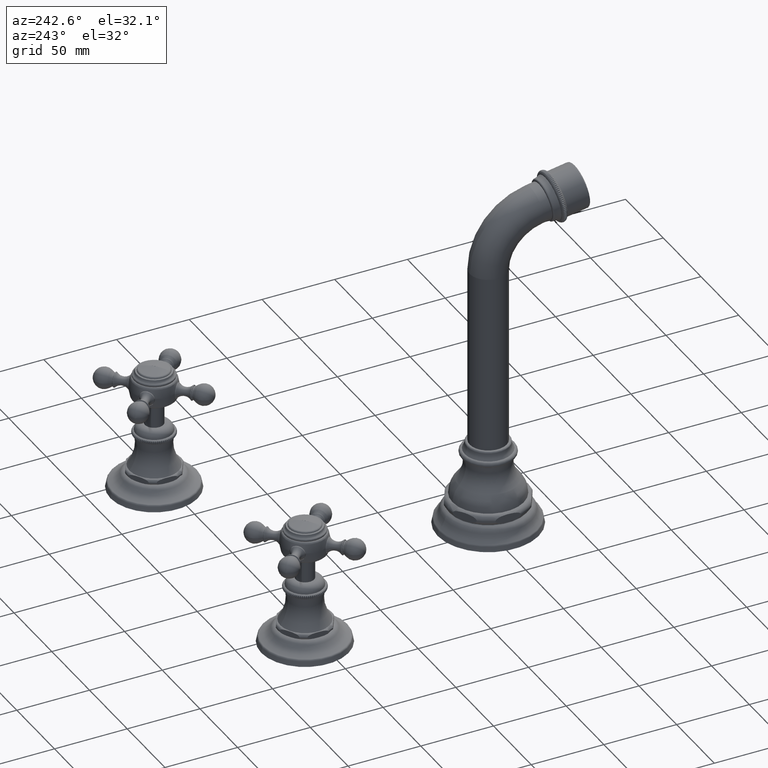
[diagram: clean part render]
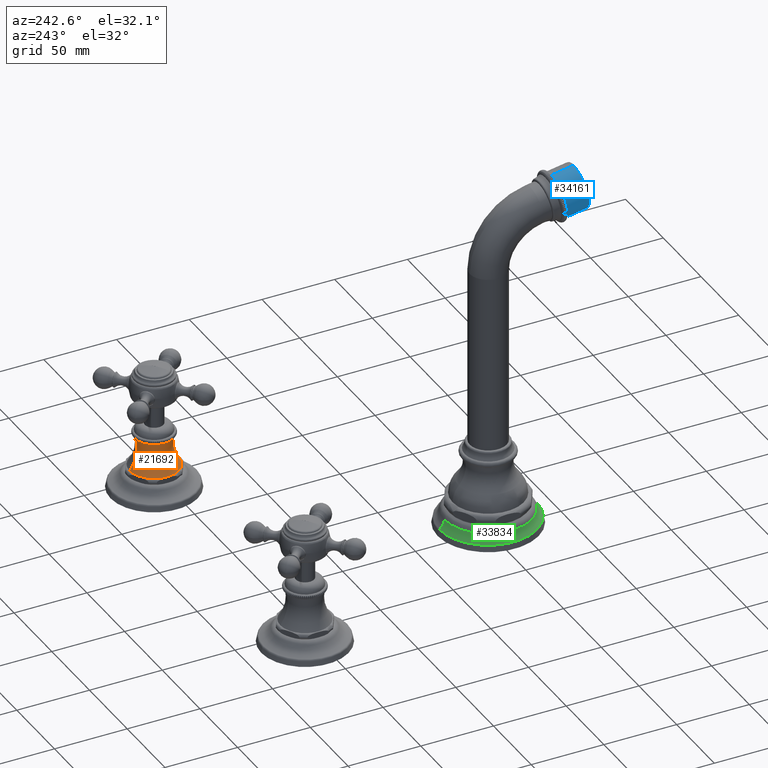
[diagram: same view with three faces highlighted in distinct colors, each labeled with its STEP entity id]
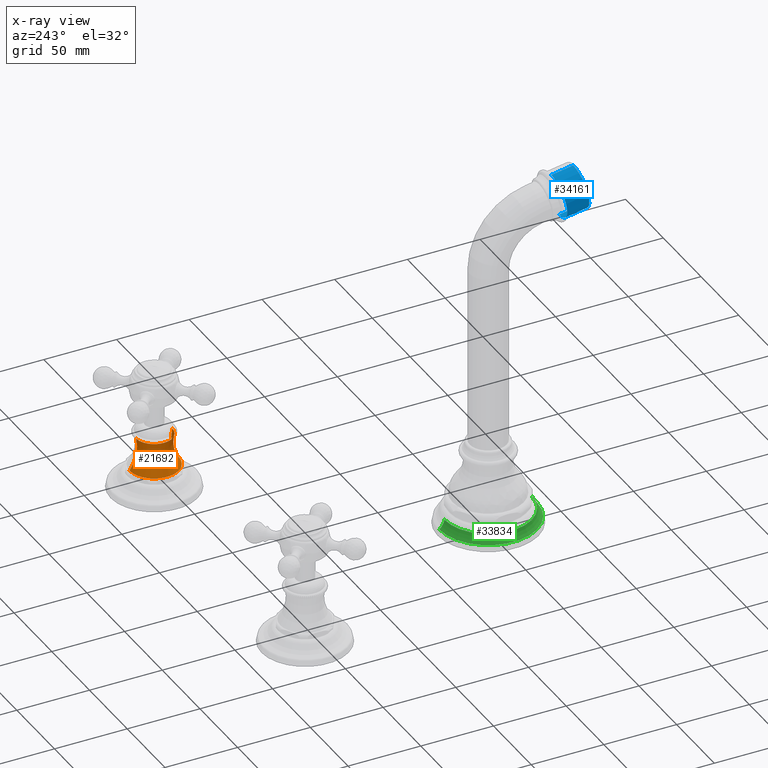
[diagram: x-ray of the same camera — body ghosted, the three highlighted faces saturated]
A machine part, auxiliary view with three faces highlighted in distinct colors.
The next image is the same camera in x-ray (body ghosted, the three faces saturated) — at least one of them is partly hidden behind the body in this view.
Their STEP definitions:

[orange] entity #21692 — the highlighted toroidal blend (fillet) surface has major radius 37.7701 mm and minor (blend) radius 26.0858 mm.
#15926=CARTESIAN_POINT('',(3.94E0,7.E0,1.499E0));
#15927=DIRECTION('',(0.E0,0.E0,1.E0));
#15928=DIRECTION('',(0.E0,1.E0,0.E0));
#15929=AXIS2_PLACEMENT_3D('',#15926,#15927,#15928);
#17445=CARTESIAN_POINT('',(3.94E0,8.487011938409E0,1.252634022903E0));
#17446=DIRECTION('',(-1.E0,0.E0,0.E0));
#17447=DIRECTION('',(0.E0,-7.989405437278E-1,-6.014100162018E-1));
#17448=AXIS2_PLACEMENT_3D('',#17445,#17446,#17447);
#17453=CARTESIAN_POINT('',(3.94E0,5.512988061591E0,1.252634022903E0));
#17454=DIRECTION('',(1.E0,0.E0,0.E0));
#17455=DIRECTION('',(0.E0,7.989405437278E-1,-6.014100162018E-1));
#17456=AXIS2_PLACEMENT_3D('',#17453,#17454,#17455);
#17461=CARTESIAN_POINT('',(3.94E0,7.E0,6.349859362638E-1));
#17462=DIRECTION('',(0.E0,0.E0,1.E0));
#17463=DIRECTION('',(0.E0,1.E0,0.E0));
#17464=AXIS2_PLACEMENT_3D('',#17461,#17462,#17463);
#19282=CARTESIAN_POINT('',(3.94E0,7.6665E0,6.349859362638E-1));
#19284=VERTEX_POINT('',#19282);
#19285=CARTESIAN_POINT('',(3.94E0,7.49E0,1.499E0));
#19286=VERTEX_POINT('',#19285);
#19292=CARTESIAN_POINT('',(3.94E0,6.3335E0,6.349859362638E-1));
#19294=VERTEX_POINT('',#19292);
#19295=CARTESIAN_POINT('',(3.94E0,6.51E0,1.499E0));
#19296=VERTEX_POINT('',#19295);
#21678=CARTESIAN_POINT('',(3.94E0,7.E0,1.252634022903E0));
#21679=DIRECTION('',(0.E0,0.E0,-1.E0));
#21680=DIRECTION('',(0.E0,-1.E0,0.E0));
#21681=AXIS2_PLACEMENT_3D('',#21678,#21679,#21680);
#21682=TOROIDAL_SURFACE('',#21681,1.487011938408E0,1.027E0);
#21684=ORIENTED_EDGE('',*,*,#21683,.T.);
#21685=ORIENTED_EDGE('',*,*,#21411,.T.);
#21687=ORIENTED_EDGE('',*,*,#21686,.F.);
#21689=ORIENTED_EDGE('',*,*,#21688,.F.);
#21690=EDGE_LOOP('',(#21684,#21685,#21687,#21689));
#21691=FACE_OUTER_BOUND('',#21690,.F.);
#15930=CIRCLE('',#15929,4.9E-1);
#17449=CIRCLE('',#17448,1.027E0);
#17457=CIRCLE('',#17456,1.027E0);
#17465=CIRCLE('',#17464,6.665E-1);
#21411=EDGE_CURVE('',#19286,#19296,#15930,.T.);
#21683=EDGE_CURVE('',#19284,#19286,#17449,.T.);
#21686=EDGE_CURVE('',#19294,#19296,#17457,.T.);
#21688=EDGE_CURVE('',#19284,#19294,#17465,.T.);
#21692=ADVANCED_FACE('',(#21691),#21682,.F.);

[blue] entity #34161 — the highlighted cylindrical surface (edge-blend (fillet) strip) has radius 15.24 mm, axis along (0, -0.9848, 0.1736).
#28616=CARTESIAN_POINT('',(0.E0,-1.812202875813E0,7.918189708289E0));
#28617=DIRECTION('',(0.E0,9.848077530122E-1,-1.736481776669E-1));
#28618=DIRECTION('',(0.E0,-1.736481776669E-1,-9.848077530122E-1));
#28619=AXIS2_PLACEMENT_3D('',#28616,#28617,#28618);
#31646=CARTESIAN_POINT('',(0.E0,-2.408011566386E0,8.023246855778E0));
#31647=DIRECTION('',(0.E0,9.848077530122E-1,-1.736481776669E-1));
#31648=DIRECTION('',(0.E0,-1.736481776669E-1,-9.848077530122E-1));
#31649=AXIS2_PLACEMENT_3D('',#31646,#31647,#31648);
#31654=DIRECTION('',(1.360945872310E-13,9.848077530122E-1,-1.736481776669E-1));
#31655=VECTOR('',#31654,6.05E-1);
#31656=CARTESIAN_POINT('',(-8.217405549673E-14,-2.512200472986E0,
7.432362203970E0));
#31657=LINE('',#31656,#31655);
#31661=DIRECTION('',(-1.360642240872E-13,9.848077530122E-1,-1.736481776669E-1));
#31662=VECTOR('',#31661,6.05E-1);
#31663=CARTESIAN_POINT('',(8.233506773487E-14,-2.303822659785E0,
8.614131507585E0));
#31664=LINE('',#31663,#31662);
#32342=CARTESIAN_POINT('',(0.E0,-1.708013969213E0,8.509074360097E0));
#32344=VERTEX_POINT('',#32342);
#32346=CARTESIAN_POINT('',(0.E0,-1.916391782413E0,7.327305056482E0));
#32347=VERTEX_POINT('',#32346);
#32554=CARTESIAN_POINT('',(0.E0,-2.512200472986E0,7.432362203970E0));
#32555=CARTESIAN_POINT('',(0.E0,-2.303822659785E0,8.614131507585E0));
#32556=VERTEX_POINT('',#32554);
#32557=VERTEX_POINT('',#32555);
#34147=CARTESIAN_POINT('',(0.E0,-1.413355735843E0,7.847862196334E0));
#34148=DIRECTION('',(0.E0,-9.848077530122E-1,1.736481776669E-1));
#34149=DIRECTION('',(0.E0,1.736481776669E-1,9.848077530122E-1));
#34150=AXIS2_PLACEMENT_3D('',#34147,#34148,#34149);
#34151=CYLINDRICAL_SURFACE('',#34150,6.E-1);
#34153=ORIENTED_EDGE('',*,*,#34152,.F.);
#34155=ORIENTED_EDGE('',*,*,#34154,.T.);
#34156=ORIENTED_EDGE('',*,*,#32955,.T.);
#34158=ORIENTED_EDGE('',*,*,#34157,.F.);
#34159=EDGE_LOOP('',(#34153,#34155,#34156,#34158));
#34160=FACE_OUTER_BOUND('',#34159,.F.);
#28620=CIRCLE('',#28619,6.E-1);
#31650=CIRCLE('',#31649,6.E-1);
#32955=EDGE_CURVE('',#32347,#32344,#28620,.T.);
#34152=EDGE_CURVE('',#32556,#32557,#31650,.T.);
#34154=EDGE_CURVE('',#32556,#32347,#31657,.T.);
#34157=EDGE_CURVE('',#32557,#32344,#31664,.T.);
#34161=ADVANCED_FACE('',(#34160),#34151,.T.);

[green] entity #33834 — the highlighted toroidal blend (fillet) surface has major radius 41.0026 mm and minor (blend) radius 11.43 mm.
#31505=CARTESIAN_POINT('',(0.E0,0.E0,-4.384596149362E-1));
#31506=DIRECTION('',(0.E0,0.E0,1.E0));
#31507=DIRECTION('',(0.E0,1.E0,0.E0));
#31508=AXIS2_PLACEMENT_3D('',#31505,#31506,#31507);
#31521=CARTESIAN_POINT('',(0.E0,0.E0,-6.702317237724E-1));
#31522=DIRECTION('',(0.E0,0.E0,1.E0));
#31523=DIRECTION('',(0.E0,1.E0,0.E0));
#31524=AXIS2_PLACEMENT_3D('',#31521,#31522,#31523);
#31529=CARTESIAN_POINT('',(0.E0,1.614276941798E0,-3.274060203368E-1));
#31530=DIRECTION('',(-1.E0,0.E0,0.E0));
#31531=DIRECTION('',(0.E0,-6.477712485429E-1,-7.618348965236E-1));
#31532=AXIS2_PLACEMENT_3D('',#31529,#31530,#31531);
#31537=CARTESIAN_POINT('',(0.E0,-1.614276941798E0,-3.274060203368E-1));
#31538=DIRECTION('',(1.E0,0.E0,0.E0));
#31539=DIRECTION('',(0.E0,6.477712485429E-1,-7.618348965236E-1));
#31540=AXIS2_PLACEMENT_3D('',#31537,#31538,#31539);
#32570=CARTESIAN_POINT('',(0.E0,1.178195413725E0,-4.384596149362E-1));
#32571=CARTESIAN_POINT('',(0.E0,-1.178195413725E0,-4.384596149362E-1));
#32572=VERTEX_POINT('',#32570);
#32573=VERTEX_POINT('',#32571);
#32582=CARTESIAN_POINT('',(0.E0,1.322779879953E0,-6.702317237724E-1));
#32583=CARTESIAN_POINT('',(0.E0,-1.322779879953E0,-6.702317237724E-1));
#32584=VERTEX_POINT('',#32582);
#32585=VERTEX_POINT('',#32583);
#33820=CARTESIAN_POINT('',(0.E0,0.E0,-3.274060203368E-1));
#33821=DIRECTION('',(0.E0,0.E0,-1.E0));
#33822=DIRECTION('',(0.E0,-1.E0,0.E0));
#33823=AXIS2_PLACEMENT_3D('',#33820,#33821,#33822);
#33824=TOROIDAL_SURFACE('',#33823,1.614276941798E0,4.5E-1);
#33826=ORIENTED_EDGE('',*,*,#33825,.F.);
#33828=ORIENTED_EDGE('',*,*,#33827,.T.);
#33829=ORIENTED_EDGE('',*,*,#33807,.T.);
#33831=ORIENTED_EDGE('',*,*,#33830,.F.);
#33832=EDGE_LOOP('',(#33826,#33828,#33829,#33831));
#33833=FACE_OUTER_BOUND('',#33832,.F.);
#31509=CIRCLE('',#31508,1.178195413725E0);
#31525=CIRCLE('',#31524,1.322779879953E0);
#31533=CIRCLE('',#31532,4.5E-1);
#31541=CIRCLE('',#31540,4.5E-1);
#33807=EDGE_CURVE('',#32572,#32573,#31509,.T.);
#33825=EDGE_CURVE('',#32584,#32585,#31525,.T.);
#33827=EDGE_CURVE('',#32584,#32572,#31533,.T.);
#33830=EDGE_CURVE('',#32585,#32573,#31541,.T.);
#33834=ADVANCED_FACE('',(#33833),#33824,.F.);